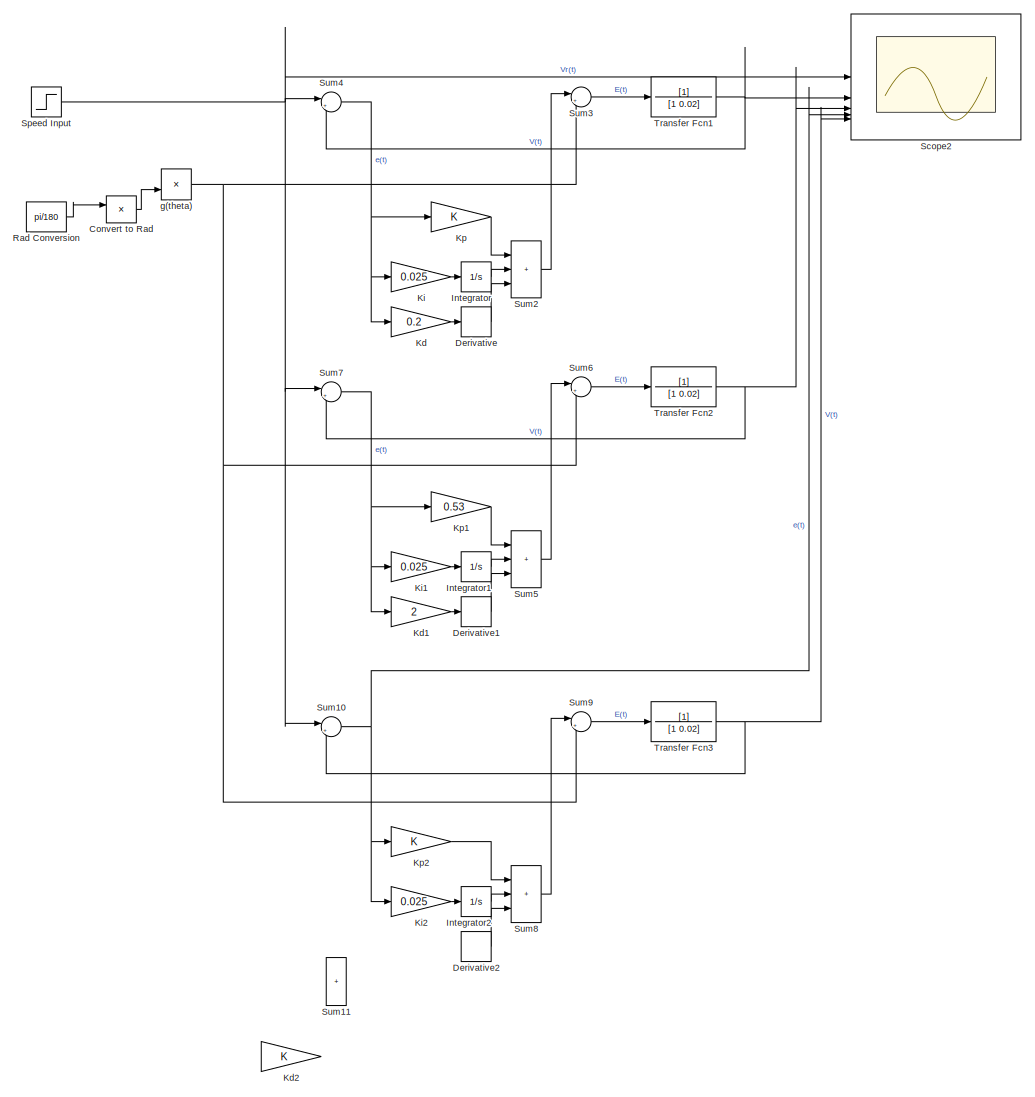
[diagram: root canvas - part 1/2, right side, full height]
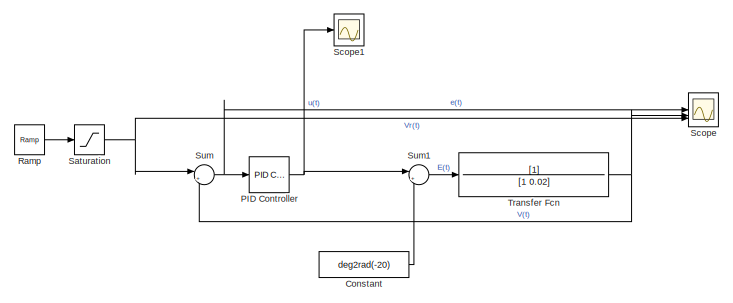
[diagram: root canvas - part 2/2, middle left region]
MODEL slx_0248658c6c79
KIND model
CONFIG AbsTol = auto
CONFIG EnableMultiTasking = off
CONFIG FixedStep = auto
CONFIG MaxStep = auto
CONFIG MinStep = auto
CONFIG RelTol = 1e-3
CONFIG SampleTimeConstraint = Unconstrained
CONFIG SolverName = VariableStepAuto
CONFIG StartTime = 0.0
CONFIG StopTime = 60
WORKSPACE source: mxarray member
WORKSPACE c = 1
WORKSPACE m = 1000
BLOCK [Constant] Constant
  Value = deg2rad(-20)
BLOCK [Product] Convert to Rad
BLOCK [Derivative] Derivative
BLOCK [Derivative] Derivative1
BLOCK [Derivative] Derivative2
BLOCK [Integrator] Integrator
BLOCK [Integrator] Integrator1
BLOCK [Integrator] Integrator2
BLOCK [Gain] Kd
  Gain = 0.2
BLOCK [Gain] Kd1
  Gain = 2
BLOCK [Gain] Kd2
BLOCK [Gain] Ki
  Gain = 0.025
BLOCK [Gain] Ki1
  Gain = 0.025
BLOCK [Gain] Ki2
  Gain = 0.025
BLOCK [Gain] Kp
BLOCK [Gain] Kp1
  Gain = 0.53
BLOCK [Gain] Kp2
BLOCK [Reference] PID Controller  REF=slpidlib/PID Controller
  LibrarySourceBlock = simulink/Continuous/PID Controller
  SourceBlock = slpidlib/PID Controller
  SourceType = PID 1dof
BLOCK [Constant] Rad Conversion
  Value = pi/180
BLOCK [Reference] Ramp  REF=simulink/Sources/Ramp
  SourceBlock = simulink/Sources/Ramp
  SourceType = Ramp
BLOCK [Saturate] Saturation
  LowerLimit = 0
  UpperLimit = 30
BLOCK [Scope] Scope
  Floating = off
  NumInputPorts = 3
  ScopeSpecificationString = Simulink.scopes.TimeScopeBlockCfg('CurrentConfiguration', extmgr.ConfigurationSet(extmgr.Configuration('Core','General UI',true),extmgr.Configuration('Core','Source UI',true),extmgr.Configuration('Sources','WiredSimulink',true),extmgr.Configuration('Visuals','Time Domain',true,'SerializedDisplays',{struct('MinYLimReal','-6.86852','MaxYLimReal','36.86852','YLabelReal','','MinYLimMag','0.00000','Max...<+1464ch>
BLOCK [Scope] Scope1
  Floating = off
  NumInputPorts = 1
  ScopeSpecificationString = Simulink.scopes.TimeScopeBlockCfg('CurrentConfiguration', extmgr.ConfigurationSet(extmgr.Configuration('Core','General UI',true),extmgr.Configuration('Core','Source UI',true),extmgr.Configuration('Sources','WiredSimulink',true,'DataLoggingVariableName','ScopeData1'),extmgr.Configuration('Visuals','Time Domain',true,'SerializedDisplays',{struct('MinYLimReal','-58.639','MaxYLimReal','39.84878','YLab...<+1392ch>
BLOCK [Scope] Scope2
  Floating = off
  NumInputPorts = 6
  ScopeSpecificationString = Simulink.scopes.TimeScopeBlockCfg('CurrentConfiguration', extmgr.ConfigurationSet(extmgr.Configuration('Core','General UI',true),extmgr.Configuration('Core','Source UI',true),extmgr.Configuration('Sources','WiredSimulink',true,'DataLoggingVariableName','ScopeData1'),extmgr.Configuration('Visuals','Time Domain',true,'SerializedDisplays',{struct('MinYLimReal','-4.28144','MaxYLimReal','37.38696','YLa...<+1582ch>
BLOCK [Step] Speed Input
  After = 30
  Before = 10
  SampleTime = 0.1
  Time = 10
BLOCK [Sum] Sum
  Inputs = |+-
BLOCK [Sum] Sum1
  Inputs = |++
BLOCK [Sum] Sum10
  Inputs = |+-
BLOCK [Sum] Sum11
  IconShape = rectangular
  Inputs = +|+
BLOCK [Sum] Sum2
  IconShape = rectangular
  Inputs = |+++
BLOCK [Sum] Sum3
  Inputs = |++
BLOCK [Sum] Sum4
  Inputs = |+-
BLOCK [Sum] Sum5
  IconShape = rectangular
  Inputs = |+++
BLOCK [Sum] Sum6
  Inputs = |++
BLOCK [Sum] Sum7
  Inputs = |+-
BLOCK [Sum] Sum8
  IconShape = rectangular
  Inputs = |+++
BLOCK [Sum] Sum9
  Inputs = |++
BLOCK [TransferFcn] Transfer Fcn
  Denominator = [1 0.02]
BLOCK [TransferFcn] Transfer Fcn1
  Denominator = [1 0.02]
BLOCK [TransferFcn] Transfer Fcn2
  Denominator = [1 0.02]
BLOCK [TransferFcn] Transfer Fcn3
  Denominator = [1 0.02]
BLOCK [Product] g(theta)
LINE Constant:1 -> Sum1:2
LINE Convert to Rad:1 -> g(theta):2
LINE Derivative1:1 -> Sum5:3
LINE Derivative2:1 -> Sum8:3
LINE Derivative:1 -> Sum2:3
LINE Integrator1:1 -> Sum5:2
LINE Integrator2:1 -> Sum8:2
LINE Integrator:1 -> Sum2:2
LINE Kd1:1 -> Derivative1:1
LINE Kd:1 -> Derivative:1
LINE Ki1:1 -> Integrator1:1
LINE Ki2:1 -> Integrator2:1
LINE Ki:1 -> Integrator:1
LINE Kp1:1 -> Sum5:1
LINE Kp2:1 -> Sum8:1
LINE Kp:1 -> Sum2:1
NET PID Controller:1 -> Scope1:1, Sum1:1
LINE Rad Conversion:1 -> Convert to Rad:1
LINE Ramp:1 -> Saturation:1
NET Saturation:1 -> Scope:3, Sum:1
NET Speed Input:1 -> Scope2:1, Sum10:1, Sum4:1, Sum7:1
NET Sum10:1 -> Ki2:1, Kp2:1, Scope2:4
LINE Sum1:1 -> Transfer Fcn:1
LINE Sum2:1 -> Sum3:1
LINE Sum3:1 -> Transfer Fcn1:1
NET Sum4:1 -> Kd:1, Ki:1, Kp:1
LINE Sum5:1 -> Sum6:1
LINE Sum6:1 -> Transfer Fcn2:1
NET Sum7:1 -> Kd1:1, Ki1:1, Kp1:1
LINE Sum8:1 -> Sum9:1
LINE Sum9:1 -> Transfer Fcn3:1
NET Sum:1 -> PID Controller:1, Scope:1
NET Transfer Fcn1:1 -> Scope2:2, Sum4:2
NET Transfer Fcn2:1 -> Scope2:3, Sum7:2
NET Transfer Fcn3:1 -> Scope2:5, Sum10:2
NET Transfer Fcn:1 -> Scope:2, Sum:2
NET g(theta):1 -> Sum3:2, Sum6:2, Sum9:2
note: NET lines group one-source signal fan-out (src -> all destinations, sorted); 1:1 wires keep LINE
